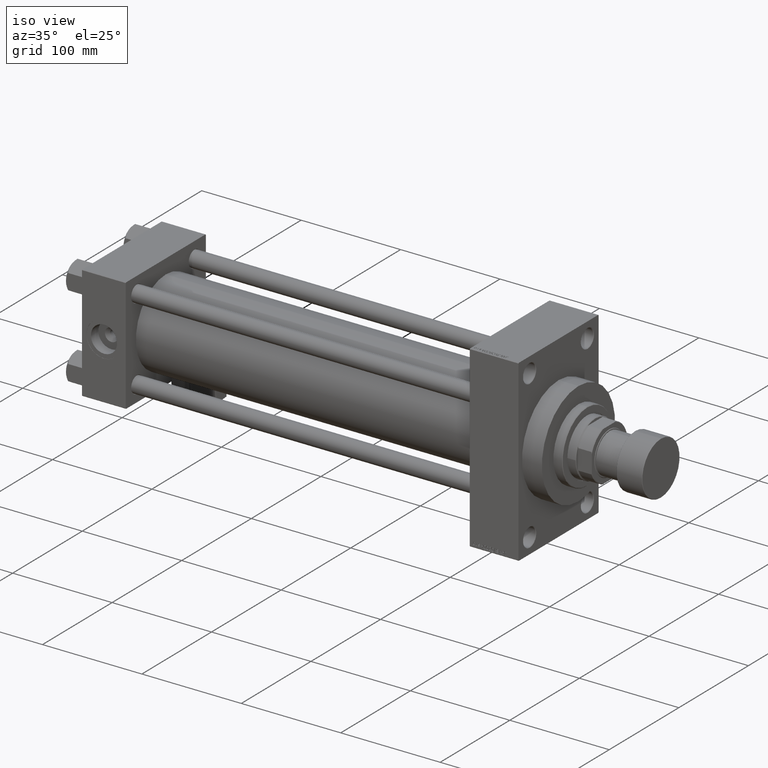
[diagram: clean part render]
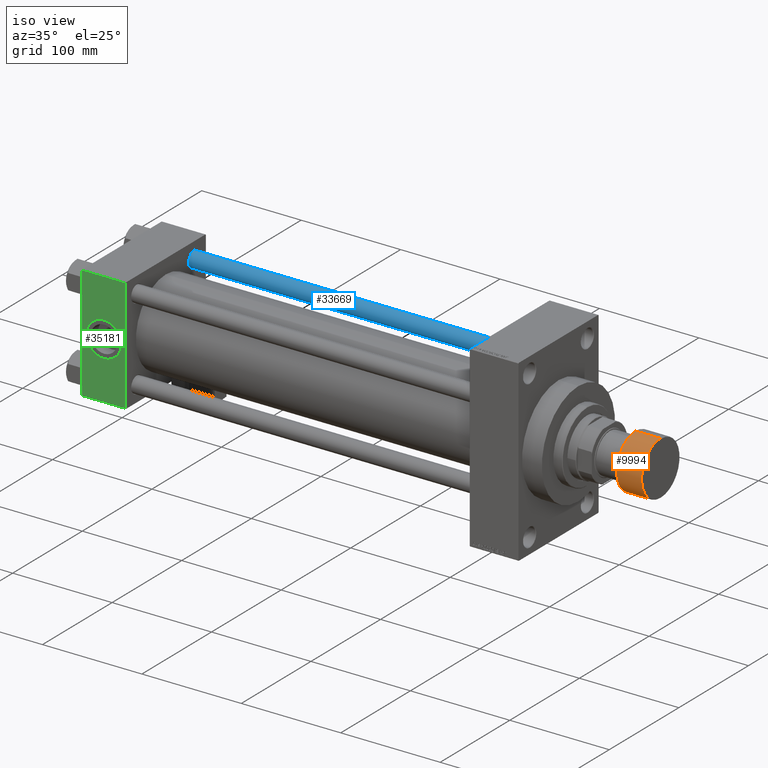
[diagram: same view with three faces highlighted in distinct colors, each labeled with its STEP entity id]
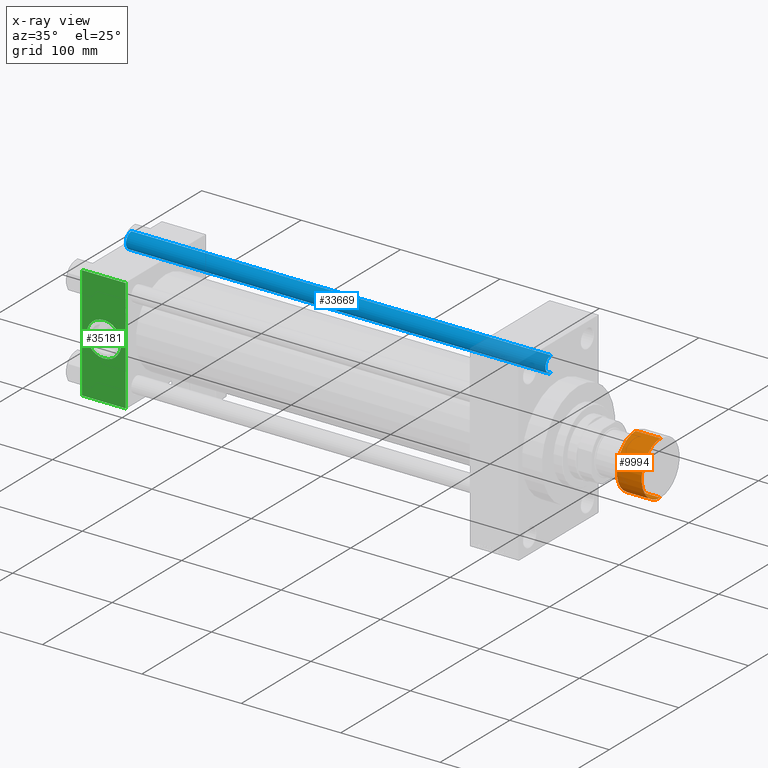
[diagram: x-ray of the same camera — body ghosted, the three highlighted faces saturated]
A machine part, iso view with three faces highlighted in distinct colors.
The next image is the same camera in x-ray (body ghosted, the three faces saturated) — at least one of them is partly hidden behind the body in this view.
Their STEP definitions:

[orange] entity #9994 — the highlighted cylindrical surface (edge-blend (fillet) strip) has radius 27 mm, axis along (1, 0, 0).
#3835 = CYLINDRICAL_SURFACE ( 'NONE', #40812, 27.00000000000000000 ) ;
#4415 = VECTOR ( 'NONE', #25351, 1000.000000000000000 ) ;
#4669 = EDGE_LOOP ( 'NONE', ( #33481, #12141, #46203, #13733 ) ) ;
#5498 = CIRCLE ( 'NONE', #48157, 27.00000000000000000 ) ;
#6570 = CARTESIAN_POINT ( 'NONE',  ( 27.00000000000000000, 0.000000000000000000, -25.50000000000000000 ) ) ;
#9994 = ADVANCED_FACE ( 'NONE', ( #23746 ), #3835, .T. ) ;
#10232 = CARTESIAN_POINT ( 'NONE',  ( 27.00000000000000000, 0.000000000000000000, -0.5000000000000004441 ) ) ;
#11923 = VERTEX_POINT ( 'NONE', #32949 ) ;
#12141 = ORIENTED_EDGE ( 'NONE', *, *, #49468, .T. ) ;
#13733 = ORIENTED_EDGE ( 'NONE', *, *, #50786, .T. ) ;
#13812 = LINE ( 'NONE', #21683, #47614 ) ;
#15872 = DIRECTION ( 'NONE',  ( 0.000000000000000000, 0.000000000000000000, 1.000000000000000000 ) ) ;
#17224 = DIRECTION ( 'NONE',  ( -0.000000000000000000, -0.000000000000000000, -1.000000000000000000 ) ) ;
#17299 = VERTEX_POINT ( 'NONE', #10232 ) ;
#19807 = CARTESIAN_POINT ( 'NONE',  ( 0.000000000000000000, 0.000000000000000000, -26.00000000000000000 ) ) ;
#20643 = DIRECTION ( 'NONE',  ( 1.000000000000000000, 0.000000000000000000, 0.000000000000000000 ) ) ;
#21683 = CARTESIAN_POINT ( 'NONE',  ( 27.00000000000000000, 0.000000000000000000, -26.00000000000000000 ) ) ;
#22188 = DIRECTION ( 'NONE',  ( 0.000000000000000000, 0.000000000000000000, 1.000000000000000000 ) ) ;
#23746 = FACE_OUTER_BOUND ( 'NONE', #4669, .T. ) ;
#25351 = DIRECTION ( 'NONE',  ( 0.000000000000000000, 0.000000000000000000, 1.000000000000000000 ) ) ;
#25380 = EDGE_CURVE ( 'NONE', #11923, #32327, #49445, .T. ) ;
#31525 = CIRCLE ( 'NONE', #32364, 27.00000000000000000 ) ;
#31642 = EDGE_CURVE ( 'NONE', #50329, #17299, #13812, .T. ) ;
#31873 = DIRECTION ( 'NONE',  ( 1.000000000000000000, 0.000000000000000000, 0.000000000000000000 ) ) ;
#32327 = VERTEX_POINT ( 'NONE', #45558 ) ;
#32364 = AXIS2_PLACEMENT_3D ( 'NONE', #48404, #17224, #20643 ) ;
#32949 = CARTESIAN_POINT ( 'NONE',  ( -27.00000000000000000, 3.306546357697852944E-15, -25.50000000000000000 ) ) ;
#33481 = ORIENTED_EDGE ( 'NONE', *, *, #25380, .F. ) ;
#37162 = CARTESIAN_POINT ( 'NONE',  ( -27.00000000000000000, 3.306546357697852944E-15, -26.00000000000000000 ) ) ;
#40593 = DIRECTION ( 'NONE',  ( 1.000000000000000000, 0.000000000000000000, 0.000000000000000000 ) ) ;
#40812 = AXIS2_PLACEMENT_3D ( 'NONE', #19807, #15872, #31873 ) ;
#43744 = DIRECTION ( 'NONE',  ( 0.000000000000000000, 0.000000000000000000, 1.000000000000000000 ) ) ;
#45558 = CARTESIAN_POINT ( 'NONE',  ( -27.00000000000000000, 3.306546357697852944E-15, -0.5000000000000004441 ) ) ;
#46203 = ORIENTED_EDGE ( 'NONE', *, *, #31642, .T. ) ;
#47614 = VECTOR ( 'NONE', #22188, 1000.000000000000000 ) ;
#48157 = AXIS2_PLACEMENT_3D ( 'NONE', #48445, #43744, #40593 ) ;
#48404 = CARTESIAN_POINT ( 'NONE',  ( 0.000000000000000000, 0.000000000000000000, -0.5000000000000004441 ) ) ;
#48445 = CARTESIAN_POINT ( 'NONE',  ( 0.000000000000000000, 0.000000000000000000, -25.50000000000000000 ) ) ;
#49445 = LINE ( 'NONE', #37162, #4415 ) ;
#49468 = EDGE_CURVE ( 'NONE', #11923, #50329, #5498, .T. ) ;
#50329 = VERTEX_POINT ( 'NONE', #6570 ) ;
#50786 = EDGE_CURVE ( 'NONE', #17299, #32327, #31525, .T. ) ;

[blue] entity #33669 — the highlighted cylindrical surface (edge-blend (fillet) strip) has radius 8 mm, axis along (1, -0, -0).
#1651 = CARTESIAN_POINT ( 'NONE',  ( -8.000000000000000000, 0.000000000000000000, 422.5000000000002842 ) ) ;
#3439 = EDGE_CURVE ( 'NONE', #33978, #46345, #10563, .T. ) ;
#3736 = CARTESIAN_POINT ( 'NONE',  ( -8.000000000000000000, 0.000000000000000000, 0.5000000000003890221 ) ) ;
#6137 = VERTEX_POINT ( 'NONE', #3736 ) ;
#8095 = EDGE_LOOP ( 'NONE', ( #40136, #47238, #28193, #18125 ) ) ;
#10563 = LINE ( 'NONE', #35208, #49034 ) ;
#13572 = DIRECTION ( 'NONE',  ( -1.000000000000000000, 0.000000000000000000, 0.000000000000000000 ) ) ;
#13820 = CARTESIAN_POINT ( 'NONE',  ( -8.000000000000000000, 0.000000000000000000, 423.0000000000000000 ) ) ;
#18125 = ORIENTED_EDGE ( 'NONE', *, *, #33442, .T. ) ;
#18199 = CARTESIAN_POINT ( 'NONE',  ( 8.000000000000000000, 9.797174393178823685E-16, 422.5000000000002842 ) ) ;
#18719 = DIRECTION ( 'NONE',  ( 0.000000000000000000, 0.000000000000000000, -1.000000000000000000 ) ) ;
#20105 = EDGE_CURVE ( 'NONE', #33978, #23489, #31867, .T. ) ;
#21315 = CARTESIAN_POINT ( 'NONE',  ( 8.000000000000000000, 9.797174393178823685E-16, 0.5000000000003890221 ) ) ;
#23186 = CARTESIAN_POINT ( 'NONE',  ( 0.000000000000000000, 0.000000000000000000, 422.5000000000002842 ) ) ;
#23422 = CIRCLE ( 'NONE', #45999, 8.000000000000000000 ) ;
#23489 = VERTEX_POINT ( 'NONE', #1651 ) ;
#23818 = DIRECTION ( 'NONE',  ( 1.000000000000000000, 0.000000000000000000, 0.000000000000000000 ) ) ;
#25622 = FACE_OUTER_BOUND ( 'NONE', #8095, .T. ) ;
#27219 = CARTESIAN_POINT ( 'NONE',  ( 0.000000000000000000, 0.000000000000000000, 0.5000000000003890221 ) ) ;
#28193 = ORIENTED_EDGE ( 'NONE', *, *, #41692, .T. ) ;
#28475 = AXIS2_PLACEMENT_3D ( 'NONE', #37945, #34274, #13572 ) ;
#29812 = CYLINDRICAL_SURFACE ( 'NONE', #28475, 8.000000000000000000 ) ;
#31867 = CIRCLE ( 'NONE', #38545, 8.000000000000000000 ) ;
#33442 = EDGE_CURVE ( 'NONE', #6137, #46345, #23422, .T. ) ;
#33669 = ADVANCED_FACE ( 'NONE', ( #25622 ), #29812, .T. ) ;
#33978 = VERTEX_POINT ( 'NONE', #18199 ) ;
#34022 = DIRECTION ( 'NONE',  ( -0.000000000000000000, -0.000000000000000000, -1.000000000000000000 ) ) ;
#34274 = DIRECTION ( 'NONE',  ( -0.000000000000000000, -0.000000000000000000, -1.000000000000000000 ) ) ;
#34428 = DIRECTION ( 'NONE',  ( -0.000000000000000000, -0.000000000000000000, -1.000000000000000000 ) ) ;
#35048 = LINE ( 'NONE', #13820, #46176 ) ;
#35208 = CARTESIAN_POINT ( 'NONE',  ( 8.000000000000000000, 9.797174393178823685E-16, 423.0000000000000000 ) ) ;
#37945 = CARTESIAN_POINT ( 'NONE',  ( 0.000000000000000000, 0.000000000000000000, 423.0000000000000000 ) ) ;
#38545 = AXIS2_PLACEMENT_3D ( 'NONE', #23186, #18719, #50940 ) ;
#40136 = ORIENTED_EDGE ( 'NONE', *, *, #3439, .F. ) ;
#41692 = EDGE_CURVE ( 'NONE', #23489, #6137, #35048, .T. ) ;
#45999 = AXIS2_PLACEMENT_3D ( 'NONE', #27219, #47652, #23818 ) ;
#46176 = VECTOR ( 'NONE', #34022, 1000.000000000000000 ) ;
#46345 = VERTEX_POINT ( 'NONE', #21315 ) ;
#47238 = ORIENTED_EDGE ( 'NONE', *, *, #20105, .T. ) ;
#47652 = DIRECTION ( 'NONE',  ( -0.000000000000000000, -0.000000000000000000, 1.000000000000000000 ) ) ;
#49034 = VECTOR ( 'NONE', #34428, 1000.000000000000000 ) ;
#50940 = DIRECTION ( 'NONE',  ( 1.000000000000000000, 0.000000000000000000, 0.000000000000000000 ) ) ;

[green] entity #35181 — the highlighted planar face has unit normal (0, 1, 0).
#2147 = VERTEX_POINT ( 'NONE', #47804 ) ;
#2166 = LINE ( 'NONE', #27287, #35291 ) ;
#4045 = EDGE_CURVE ( 'NONE', #2147, #28947, #27128, .T. ) ;
#4251 = CARTESIAN_POINT ( 'NONE',  ( 44.00000000000000000, -57.50000000000000000, 57.49999999999999289 ) ) ;
#6172 = CIRCLE ( 'NONE', #12821, 17.50000000000000000 ) ;
#6892 = EDGE_CURVE ( 'NONE', #28947, #29969, #38514, .T. ) ;
#8750 = VECTOR ( 'NONE', #20217, 1000.000000000000000 ) ;
#10293 = CARTESIAN_POINT ( 'NONE',  ( 44.00000000000000000, -57.50000000000000000, 57.49999999999999289 ) ) ;
#11027 = VERTEX_POINT ( 'NONE', #40264 ) ;
#11701 = DIRECTION ( 'NONE',  ( 0.000000000000000000, -1.000000000000000000, -8.673617379884036705E-17 ) ) ;
#12821 = AXIS2_PLACEMENT_3D ( 'NONE', #31629, #11701, #32146 ) ;
#13442 = FACE_OUTER_BOUND ( 'NONE', #38398, .T. ) ;
#14151 = DIRECTION ( 'NONE',  ( 0.000000000000000000, 6.033820786006285224E-17, -1.000000000000000000 ) ) ;
#15791 = DIRECTION ( 'NONE',  ( 0.000000000000000000, -1.000000000000000000, -8.673617379884036705E-17 ) ) ;
#16419 = VECTOR ( 'NONE', #48594, 1000.000000000000000 ) ;
#16822 = VERTEX_POINT ( 'NONE', #33641 ) ;
#17917 = ORIENTED_EDGE ( 'NONE', *, *, #44800, .F. ) ;
#18841 = ORIENTED_EDGE ( 'NONE', *, *, #6892, .T. ) ;
#20188 = ORIENTED_EDGE ( 'NONE', *, *, #46618, .F. ) ;
#20217 = DIRECTION ( 'NONE',  ( 0.000000000000000000, 6.033820786006285224E-17, -1.000000000000000000 ) ) ;
#24171 = AXIS2_PLACEMENT_3D ( 'NONE', #27065, #15791, #46978 ) ;
#25496 = FACE_BOUND ( 'NONE', #34324, .T. ) ;
#26272 = DIRECTION ( 'NONE',  ( 0.000000000000000000, -6.033820786006285224E-17, 1.000000000000000000 ) ) ;
#27065 = CARTESIAN_POINT ( 'NONE',  ( 22.00000000000000000, -57.50000000000000000, -3.469446951953614189E-15 ) ) ;
#27128 = LINE ( 'NONE', #39196, #16419 ) ;
#27287 = CARTESIAN_POINT ( 'NONE',  ( 44.00000000000000000, -57.49999999999999289, -57.00000000000003553 ) ) ;
#27792 = ORIENTED_EDGE ( 'NONE', *, *, #4045, .T. ) ;
#28209 = EDGE_CURVE ( 'NONE', #11027, #16822, #46748, .T. ) ;
#28947 = VERTEX_POINT ( 'NONE', #29207 ) ;
#29207 = CARTESIAN_POINT ( 'NONE',  ( 0.000000000000000000, -57.50000000000000000, 56.99999999999997868 ) ) ;
#29658 = VERTEX_POINT ( 'NONE', #42916 ) ;
#29969 = VERTEX_POINT ( 'NONE', #51409 ) ;
#31581 = VECTOR ( 'NONE', #14151, 1000.000000000000000 ) ;
#31629 = CARTESIAN_POINT ( 'NONE',  ( 22.00000000000000000, -57.50000000000000000, -3.469446951953614189E-15 ) ) ;
#32146 = DIRECTION ( 'NONE',  ( 0.000000000000000000, 0.000000000000000000, -1.000000000000000000 ) ) ;
#33641 = CARTESIAN_POINT ( 'NONE',  ( 22.00000000000000355, -57.50000000000000000, 17.49999999999999645 ) ) ;
#34147 = DIRECTION ( 'NONE',  ( 1.000000000000000000, 0.000000000000000000, 0.000000000000000000 ) ) ;
#34324 = EDGE_LOOP ( 'NONE', ( #34877, #17917 ) ) ;
#34877 = ORIENTED_EDGE ( 'NONE', *, *, #28209, .F. ) ;
#35181 = ADVANCED_FACE ( 'NONE', ( #25496, #13442 ), #41477, .F. ) ;
#35291 = VECTOR ( 'NONE', #34147, 1000.000000000000000 ) ;
#36249 = EDGE_CURVE ( 'NONE', #29969, #29658, #2166, .T. ) ;
#38398 = EDGE_LOOP ( 'NONE', ( #18841, #47970, #20188, #27792 ) ) ;
#38514 = LINE ( 'NONE', #41924, #31581 ) ;
#38560 = AXIS2_PLACEMENT_3D ( 'NONE', #10293, #42495, #26272 ) ;
#39196 = CARTESIAN_POINT ( 'NONE',  ( 44.00000000000000000, -57.50000000000000000, 56.99999999999997868 ) ) ;
#40264 = CARTESIAN_POINT ( 'NONE',  ( 22.00000000000000000, -57.50000000000000000, -17.50000000000000355 ) ) ;
#41477 = PLANE ( 'NONE',  #38560 ) ;
#41924 = CARTESIAN_POINT ( 'NONE',  ( 0.000000000000000000, -57.50000000000000000, 57.49999999999999289 ) ) ;
#42495 = DIRECTION ( 'NONE',  ( -0.000000000000000000, 1.000000000000000000, 6.033820786006285224E-17 ) ) ;
#42916 = CARTESIAN_POINT ( 'NONE',  ( 44.00000000000000000, -57.49999999999999289, -57.00000000000003553 ) ) ;
#44800 = EDGE_CURVE ( 'NONE', #16822, #11027, #6172, .T. ) ;
#46618 = EDGE_CURVE ( 'NONE', #2147, #29658, #48508, .T. ) ;
#46748 = CIRCLE ( 'NONE', #24171, 17.50000000000000000 ) ;
#46978 = DIRECTION ( 'NONE',  ( 0.000000000000000000, 0.000000000000000000, -1.000000000000000000 ) ) ;
#47804 = CARTESIAN_POINT ( 'NONE',  ( 44.00000000000000000, -57.50000000000000000, 56.99999999999997868 ) ) ;
#47970 = ORIENTED_EDGE ( 'NONE', *, *, #36249, .T. ) ;
#48508 = LINE ( 'NONE', #4251, #8750 ) ;
#48594 = DIRECTION ( 'NONE',  ( -1.000000000000000000, 0.000000000000000000, 0.000000000000000000 ) ) ;
#51409 = CARTESIAN_POINT ( 'NONE',  ( 0.000000000000000000, -57.49999999999999289, -57.00000000000003553 ) ) ;